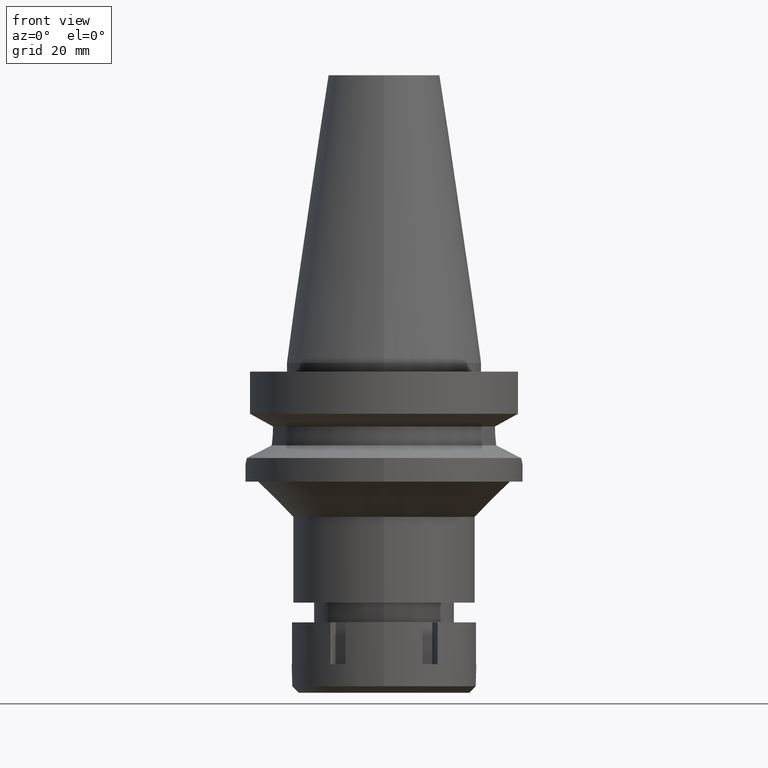
[diagram: clean part render]
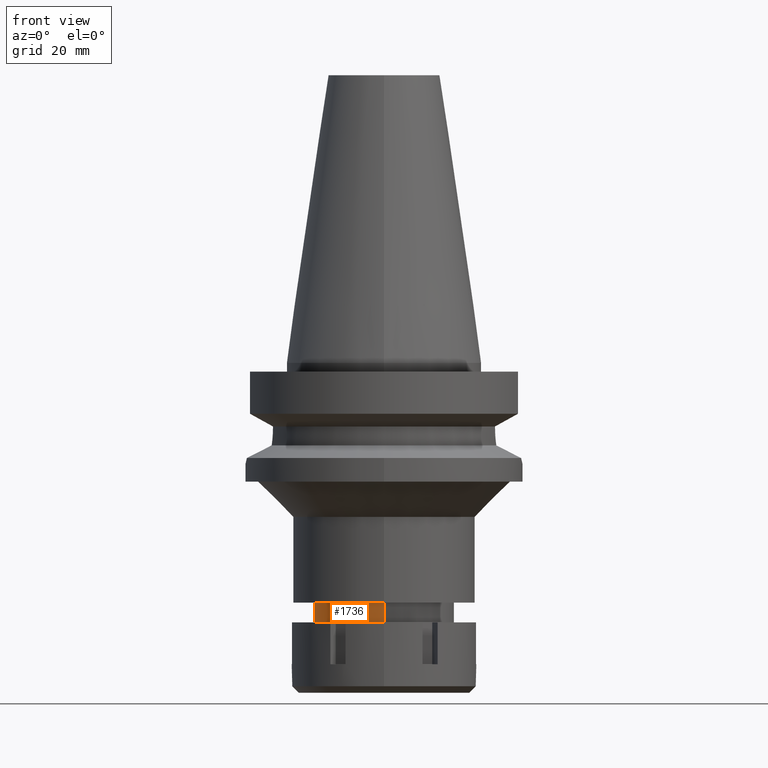
[diagram: same view with one face highlighted and labeled with its STEP entity id]
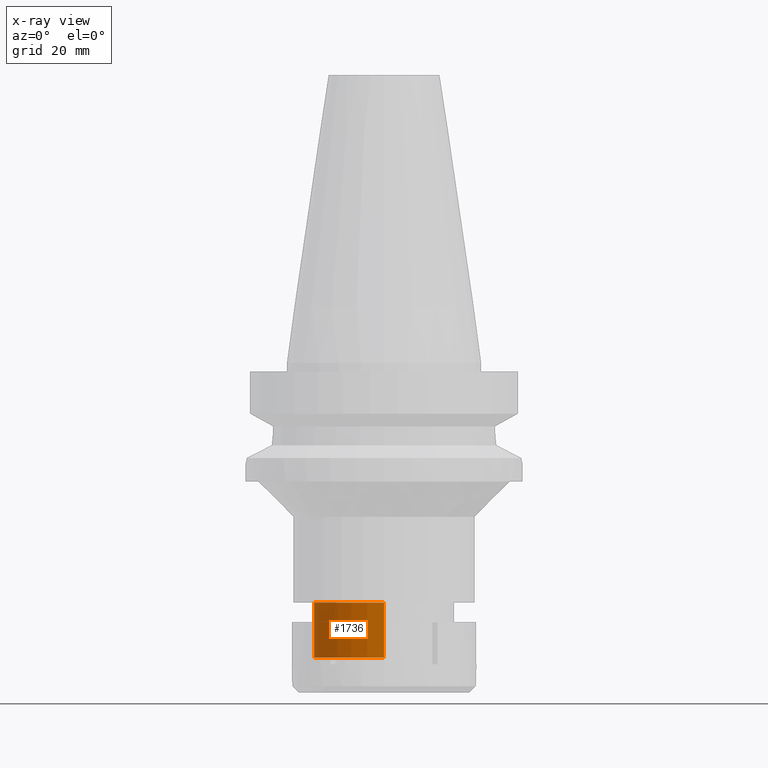
[diagram: x-ray of the same camera — body ghosted, the highlighted face saturated]
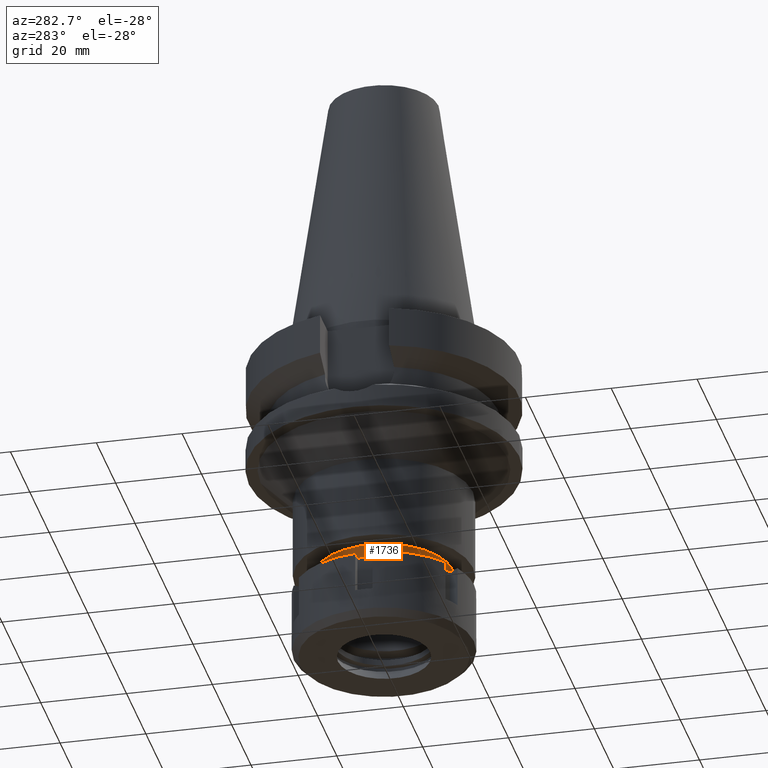
[diagram: same view with one face highlighted and labeled with its STEP entity id]
A machine part, front view. The second image highlights one B-rep face of the part: STEP entity #1736.
The next image is the same camera in x-ray: the body ghosted, the highlighted face saturated — about 0% of this face is hidden behind the body in this view.
A second angle (auxiliary view) of the same face is appended — the face is thin or edge-on in the first view.
In plain terms, the highlighted cylindrical surface (partial cylindrical patch) has radius 16 mm, axis along (0, 0, -1).
Its self-contained STEP definition (entity closure, byte-faithful):
#2 = DIRECTION ( 'NONE',  ( 0.0000000000000000000, 0.0000000000000000000, 1.000000000000000000 ) ) ;
#70 = AXIS2_PLACEMENT_3D ( 'NONE', #3075, #1287, #2357 ) ;
#92 = DIRECTION ( 'NONE',  ( 0.0000000000000000000, -1.000000000000000000, 0.0000000000000000000 ) ) ;
#123 = VERTEX_POINT ( 'NONE', #2682 ) ;
#179 = LINE ( 'NONE', #739, #458 ) ;
#264 = EDGE_LOOP ( 'NONE', ( #3306, #1113, #2837, #2763 ) ) ;
#458 = VECTOR ( 'NONE', #1296, 1000.000000000000000 ) ;
#539 = EDGE_CURVE ( 'NONE', #1285, #571, #2788, .T. ) ;
#571 = VERTEX_POINT ( 'NONE', #3344 ) ;
#693 = CIRCLE ( 'NONE', #1158, 16.00000000000000000 ) ;
#696 = CARTESIAN_POINT ( 'NONE',  ( 0.0000000000000000000, 2.106637423893000012E-14, -54.50000000000000000 ) ) ;
#739 = CARTESIAN_POINT ( 'NONE',  ( 0.0000000000000000000, 16.00000000000000000, -54.50000000000000000 ) ) ;
#771 = CIRCLE ( 'NONE', #1900, 16.00000000000000000 ) ;
#868 = EDGE_CURVE ( 'NONE', #1698, #571, #771, .T. ) ;
#878 = VECTOR ( 'NONE', #2547, 1000.000000000000000 ) ;
#1113 = ORIENTED_EDGE ( 'NONE', *, *, #539, .F. ) ;
#1158 = AXIS2_PLACEMENT_3D ( 'NONE', #696, #1804, #92 ) ;
#1285 = VERTEX_POINT ( 'NONE', #2294 ) ;
#1287 = DIRECTION ( 'NONE',  ( 0.0000000000000000000, 0.0000000000000000000, -1.000000000000000000 ) ) ;
#1296 = DIRECTION ( 'NONE',  ( 0.0000000000000000000, 0.0000000000000000000, -1.000000000000000000 ) ) ;
#1698 = VERTEX_POINT ( 'NONE', #2485 ) ;
#1736 = ADVANCED_FACE ( 'NONE', ( #1941 ), #2863, .T. ) ;
#1804 = DIRECTION ( 'NONE',  ( 0.0000000000000000000, 0.0000000000000000000, -1.000000000000000000 ) ) ;
#1900 = AXIS2_PLACEMENT_3D ( 'NONE', #3316, #2, #3336 ) ;
#1941 = FACE_OUTER_BOUND ( 'NONE', #264, .T. ) ;
#2294 = CARTESIAN_POINT ( 'NONE',  ( 0.0000000000000000000, -16.00000000000000000, -54.50000000000000000 ) ) ;
#2357 = DIRECTION ( 'NONE',  ( 0.0000000000000000000, -1.000000000000000000, 0.0000000000000000000 ) ) ;
#2485 = CARTESIAN_POINT ( 'NONE',  ( 0.0000000000000000000, 16.00000000000000000, -67.00000000000000000 ) ) ;
#2547 = DIRECTION ( 'NONE',  ( 0.0000000000000000000, 0.0000000000000000000, -1.000000000000000000 ) ) ;
#2682 = CARTESIAN_POINT ( 'NONE',  ( 0.0000000000000000000, 16.00000000000000000, -54.50000000000000000 ) ) ;
#2763 = ORIENTED_EDGE ( 'NONE', *, *, #3072, .T. ) ;
#2788 = LINE ( 'NONE', #3373, #878 ) ;
#2837 = ORIENTED_EDGE ( 'NONE', *, *, #2848, .T. ) ;
#2848 = EDGE_CURVE ( 'NONE', #1285, #123, #693, .T. ) ;
#2863 = CYLINDRICAL_SURFACE ( 'NONE', #70, 16.00000000000000000 ) ;
#3072 = EDGE_CURVE ( 'NONE', #123, #1698, #179, .T. ) ;
#3075 = CARTESIAN_POINT ( 'NONE',  ( 0.0000000000000000000, 2.106637423893000012E-14, 72.01999999999999602 ) ) ;
#3306 = ORIENTED_EDGE ( 'NONE', *, *, #868, .T. ) ;
#3316 = CARTESIAN_POINT ( 'NONE',  ( 0.0000000000000000000, 2.106637423893000012E-14, -67.00000000000000000 ) ) ;
#3336 = DIRECTION ( 'NONE',  ( 0.0000000000000000000, 1.000000000000000000, 0.0000000000000000000 ) ) ;
#3344 = CARTESIAN_POINT ( 'NONE',  ( 0.0000000000000000000, -16.00000000000000000, -67.00000000000000000 ) ) ;
#3373 = CARTESIAN_POINT ( 'NONE',  ( 0.0000000000000000000, -16.00000000000000000, -54.50000000000000000 ) ) ;